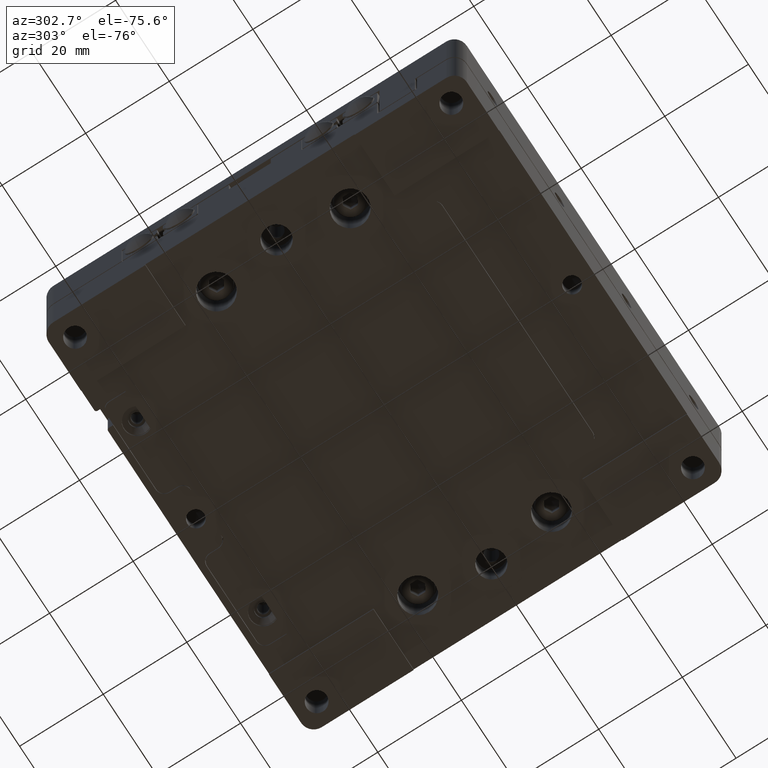
[diagram: clean part render]
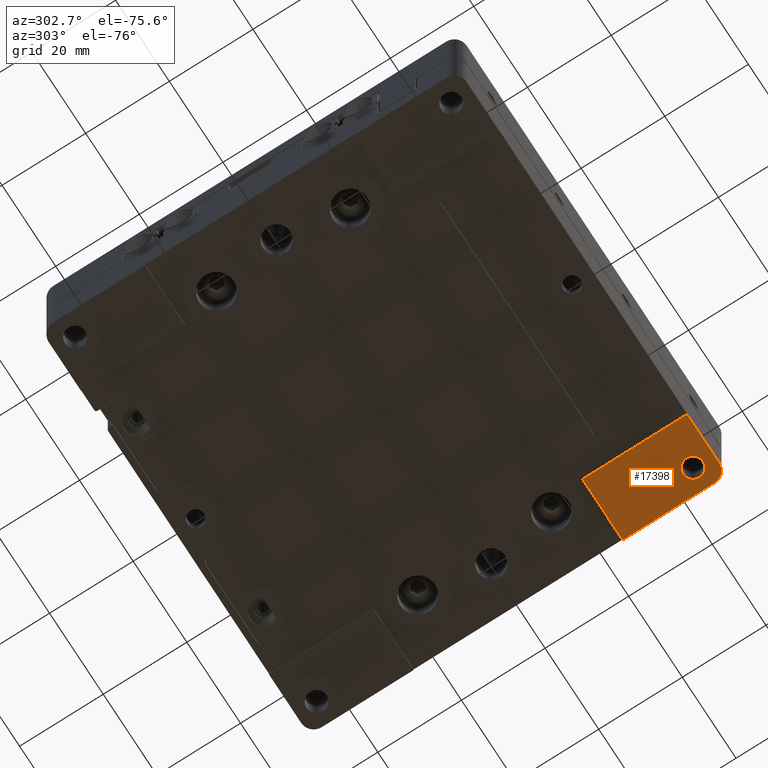
[diagram: same view with one face highlighted and labeled with its STEP entity id]
A machine part, auxiliary view. The second image highlights one B-rep face of the part: STEP entity #17398.
In plain terms, the highlighted planar face has unit normal (0, 0, -1).
Its self-contained STEP definition (entity closure, byte-faithful):
#16 = CARTESIAN_POINT ( 'NONE',  ( 45.00000000000000000, -45.00000000000000000, -14.50000000000000000 ) ) ;
#219 = CARTESIAN_POINT ( 'NONE',  ( 35.00000000000000000, -50.00000000000000000, -14.50000000000000000 ) ) ;
#1311 = ORIENTED_EDGE ( 'NONE', *, *, #3483, .T. ) ;
#1487 = ORIENTED_EDGE ( 'NONE', *, *, #20051, .F. ) ;
#1676 = DIRECTION ( 'NONE',  ( 0.000000000000000000, 1.000000000000000000, 0.000000000000000000 ) ) ;
#2682 = DIRECTION ( 'NONE',  ( 0.000000000000000000, 1.000000000000000000, 0.000000000000000000 ) ) ;
#3483 = EDGE_CURVE ( 'NONE', #15664, #21749, #5088, .T. ) ;
#3566 = VECTOR ( 'NONE', #26046, 1000.000000000000000 ) ;
#3574 = DIRECTION ( 'NONE',  ( 0.000000000000000000, -1.000000000000000000, 0.000000000000000000 ) ) ;
#4178 = DIRECTION ( 'NONE',  ( 1.000000000000000000, 0.000000000000000000, 0.000000000000000000 ) ) ;
#5088 = CIRCLE ( 'NONE', #12221, 2.399999999999999467 ) ;
#6147 = ORIENTED_EDGE ( 'NONE', *, *, #26562, .T. ) ;
#6718 = CARTESIAN_POINT ( 'NONE',  ( 42.60000000000000142, -45.00000000000000000, -14.50000000000000000 ) ) ;
#6788 = CARTESIAN_POINT ( 'NONE',  ( 47.00000000000000000, -47.00000000000000000, -14.50000000000000000 ) ) ;
#6879 = CARTESIAN_POINT ( 'NONE',  ( -50.00000000000000000, -50.00000000000000000, -14.50000000000000000 ) ) ;
#8000 = CARTESIAN_POINT ( 'NONE',  ( 45.00000000000000000, -45.00000000000000000, -14.50000000000000000 ) ) ;
#8042 = PLANE ( 'NONE',  #8997 ) ;
#8997 = AXIS2_PLACEMENT_3D ( 'NONE', #16556, #27342, #3574 ) ;
#9957 = LINE ( 'NONE', #6879, #3566 ) ;
#10069 = CARTESIAN_POINT ( 'NONE',  ( 47.00000000000000000, -50.00000000000000000, -14.50000000000000000 ) ) ;
#10185 = ORIENTED_EDGE ( 'NONE', *, *, #20724, .T. ) ;
#10798 = EDGE_LOOP ( 'NONE', ( #1311, #13688 ) ) ;
#11009 = VERTEX_POINT ( 'NONE', #219 ) ;
#11568 = VERTEX_POINT ( 'NONE', #17899 ) ;
#12221 = AXIS2_PLACEMENT_3D ( 'NONE', #16, #17024, #4178 ) ;
#12362 = FACE_OUTER_BOUND ( 'NONE', #13472, .T. ) ;
#12789 = DIRECTION ( 'NONE',  ( -1.000000000000000000, 0.000000000000000000, 0.000000000000000000 ) ) ;
#12870 = EDGE_CURVE ( 'NONE', #21749, #15664, #21140, .T. ) ;
#12930 = DIRECTION ( 'NONE',  ( 0.000000000000000000, 0.000000000000000000, 1.000000000000000000 ) ) ;
#12952 = CARTESIAN_POINT ( 'NONE',  ( 35.00000000000000000, -25.00000000000000000, -14.50000000000000000 ) ) ;
#13222 = EDGE_CURVE ( 'NONE', #11568, #17465, #21852, .T. ) ;
#13472 = EDGE_LOOP ( 'NONE', ( #10185, #6147, #13648, #1487, #26312 ) ) ;
#13648 = ORIENTED_EDGE ( 'NONE', *, *, #13222, .F. ) ;
#13688 = ORIENTED_EDGE ( 'NONE', *, *, #12870, .T. ) ;
#14012 = DIRECTION ( 'NONE',  ( 1.000000000000000000, 0.000000000000000000, 0.000000000000000000 ) ) ;
#14059 = VECTOR ( 'NONE', #14203, 1000.000000000000000 ) ;
#14203 = DIRECTION ( 'NONE',  ( 1.000000000000000000, 0.000000000000000000, 0.000000000000000000 ) ) ;
#15664 = VERTEX_POINT ( 'NONE', #27346 ) ;
#16310 = EDGE_CURVE ( 'NONE', #11009, #24242, #9957, .T. ) ;
#16556 = CARTESIAN_POINT ( 'NONE',  ( -50.00000000000000000, -50.00000000000000000, -14.50000000000000000 ) ) ;
#17024 = DIRECTION ( 'NONE',  ( 0.000000000000000000, 0.000000000000000000, 1.000000000000000000 ) ) ;
#17398 = ADVANCED_FACE ( 'NONE', ( #12362, #18673 ), #8042, .T. ) ;
#17465 = VERTEX_POINT ( 'NONE', #22739 ) ;
#17899 = CARTESIAN_POINT ( 'NONE',  ( 50.00000000000000000, -47.00000000000000000, -14.50000000000000000 ) ) ;
#18428 = CARTESIAN_POINT ( 'NONE',  ( 35.00000000000000000, -25.00000000000000000, -14.50000000000000000 ) ) ;
#18673 = FACE_BOUND ( 'NONE', #10798, .T. ) ;
#18893 = AXIS2_PLACEMENT_3D ( 'NONE', #8000, #22971, #14012 ) ;
#18955 = LINE ( 'NONE', #24849, #14059 ) ;
#19806 = VECTOR ( 'NONE', #1676, 1000.000000000000000 ) ;
#20051 = EDGE_CURVE ( 'NONE', #24242, #11568, #20285, .T. ) ;
#20285 = CIRCLE ( 'NONE', #23871, 3.000000000000002665 ) ;
#20724 = EDGE_CURVE ( 'NONE', #11009, #24779, #26709, .T. ) ;
#21140 = CIRCLE ( 'NONE', #18893, 2.399999999999999467 ) ;
#21749 = VERTEX_POINT ( 'NONE', #6718 ) ;
#21852 = LINE ( 'NONE', #25903, #23843 ) ;
#22739 = CARTESIAN_POINT ( 'NONE',  ( 50.00000000000000000, -25.00000000000000000, -14.50000000000000000 ) ) ;
#22971 = DIRECTION ( 'NONE',  ( 0.000000000000000000, 0.000000000000000000, 1.000000000000000000 ) ) ;
#23843 = VECTOR ( 'NONE', #2682, 1000.000000000000000 ) ;
#23871 = AXIS2_PLACEMENT_3D ( 'NONE', #6788, #12930, #12789 ) ;
#24242 = VERTEX_POINT ( 'NONE', #10069 ) ;
#24779 = VERTEX_POINT ( 'NONE', #12952 ) ;
#24849 = CARTESIAN_POINT ( 'NONE',  ( 65.00000000000000000, -25.00000000000000000, -14.50000000000000000 ) ) ;
#25903 = CARTESIAN_POINT ( 'NONE',  ( 50.00000000000000000, 0.000000000000000000, -14.50000000000000000 ) ) ;
#26046 = DIRECTION ( 'NONE',  ( 1.000000000000000000, 0.000000000000000000, 0.000000000000000000 ) ) ;
#26312 = ORIENTED_EDGE ( 'NONE', *, *, #16310, .F. ) ;
#26562 = EDGE_CURVE ( 'NONE', #24779, #17465, #18955, .T. ) ;
#26709 = LINE ( 'NONE', #18428, #19806 ) ;
#27342 = DIRECTION ( 'NONE',  ( 0.000000000000000000, 0.000000000000000000, -1.000000000000000000 ) ) ;
#27346 = CARTESIAN_POINT ( 'NONE',  ( 47.39999999999999858, -45.00000000000000000, -14.50000000000000000 ) ) ;